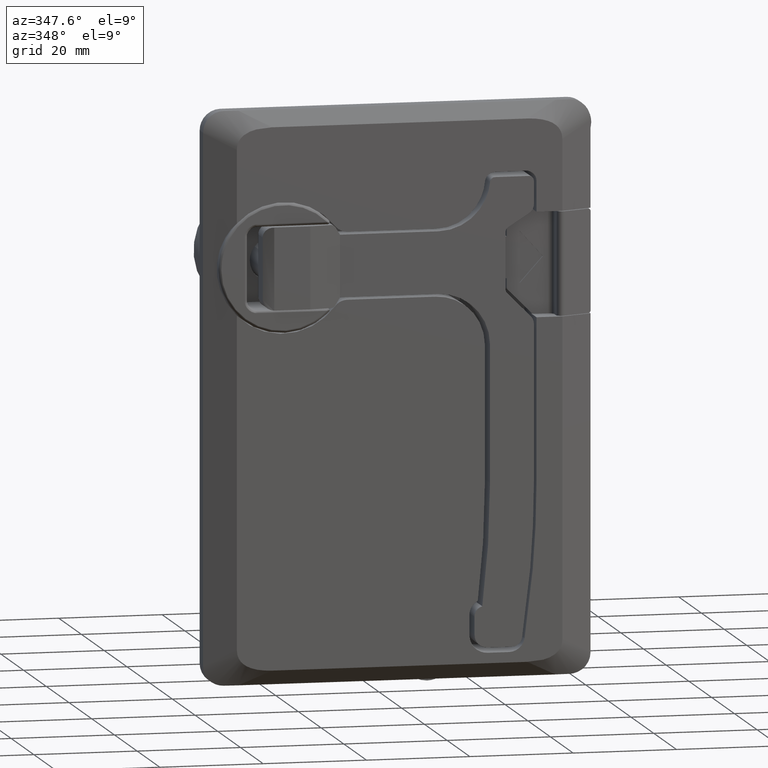
[diagram: clean part render]
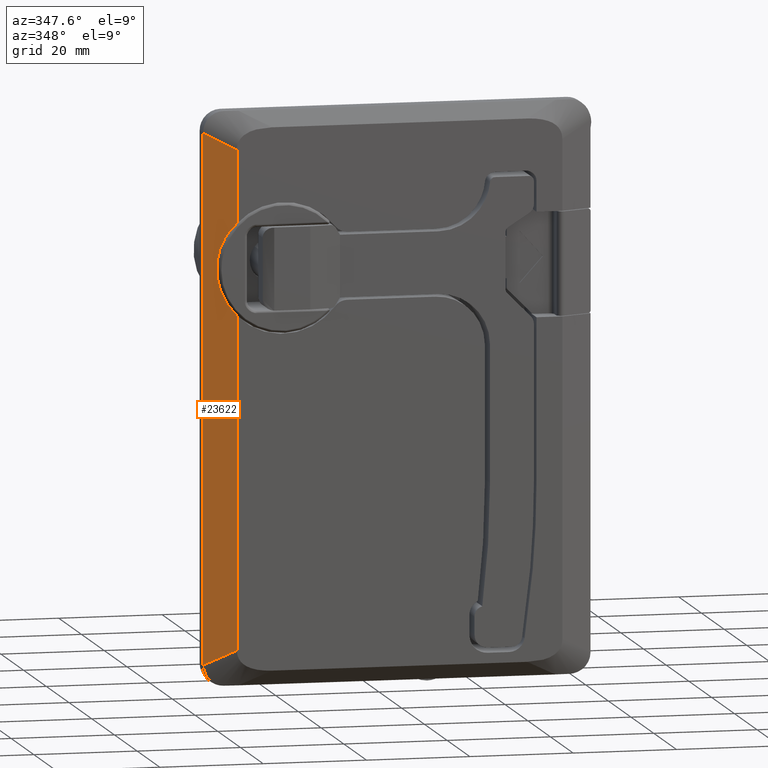
[diagram: same view with one face highlighted and labeled with its STEP entity id]
A machine part, auxiliary view. The second image highlights one B-rep face of the part: STEP entity #23622.
In plain terms, the highlighted face is a freeform B-spline surface patch.
Its self-contained STEP definition (entity closure, byte-faithful):
#20323=CARTESIAN_POINT('',(-9.000554312781020,-26.800000000000001,8.817562090782570));
#20324=VERTEX_POINT('',#20323);
#20341=CARTESIAN_POINT('',(-9.000554312781020,-26.800000000000001,-8.817562090151059));
#20342=VERTEX_POINT('',#20341);
#20343=CARTESIAN_POINT('',(-9.000554312781024,-26.800000000000072,-8.817562090151061));
#20344=CARTESIAN_POINT('',(-17.639048921657395,-23.200627246301586,3.157260E-010));
#20345=CARTESIAN_POINT('',(-9.000554312781048,-26.800000000000061,8.817562090782541));
#20353=(BOUNDED_CURVE()B_SPLINE_CURVE(2,(#20343,#20344,#20345),.UNSPECIFIED.,.F.,.U.)CURVE()GEOMETRIC_REPRESENTATION_ITEM()QUASI_UNIFORM_CURVE()RATIONAL_B_SPLINE_CURVE((1.0,0.714322831033173,1.0))REPRESENTATION_ITEM(''));
#20354=EDGE_CURVE('',#20342,#20324,#20353,.T.);
#23365=CARTESIAN_POINT('',(-9.000554312781162,-26.800000000000001,22.910781352598551));
#23366=VERTEX_POINT('',#23365);
#23441=CARTESIAN_POINT('',(-15.000554312781150,-24.300000000000001,25.910781352598448));
#23442=VERTEX_POINT('',#23441);
#23448=CARTESIAN_POINT('',(-9.000554312781162,-26.800000000000001,22.910781352598551));
#23449=CARTESIAN_POINT('',(-15.000554312781150,-24.300000000000001,25.910781352598448));
#23450=QUASI_UNIFORM_CURVE('',1,(#23448,#23449),.UNSPECIFIED.,.F.,.U.);
#23451=EDGE_CURVE('',#23366,#23442,#23450,.T.);
#23494=CARTESIAN_POINT('',(-9.000554312781162,-26.800000000000001,-72.910781352598804));
#23495=VERTEX_POINT('',#23494);
#23509=CARTESIAN_POINT('',(-15.000554312781150,-24.300000000000001,-75.910781352598789));
#23510=VERTEX_POINT('',#23509);
#23511=CARTESIAN_POINT('',(-15.000554312781150,-24.300000000000001,-75.910781352598789));
#23512=CARTESIAN_POINT('',(-9.000554312781162,-26.800000000000001,-72.910781352598804));
#23513=QUASI_UNIFORM_CURVE('',1,(#23511,#23512),.UNSPECIFIED.,.F.,.U.);
#23514=EDGE_CURVE('',#23510,#23495,#23513,.T.);
#23597=CARTESIAN_POINT('',(-8.700854380733908,-26.924874971686361,-80.996769168201411));
#23598=CARTESIAN_POINT('',(-15.300254459405011,-24.175124938906730,-80.996769168201411));
#23599=CARTESIAN_POINT('',(-8.700854380733908,-26.924874971686361,30.996770988912509));
#23600=CARTESIAN_POINT('',(-15.300254459405011,-24.175124938906730,30.996770988912509));
#23601=B_SPLINE_SURFACE_WITH_KNOTS('',1,1,((#23597,#23599),(#23598,#23600)),.UNSPECIFIED.,.F.,.F.,.U.,(2,2),(2,2),(0.0,7.149350085227028),(0.0,111.993540157113900),.UNSPECIFIED.);
#23602=CARTESIAN_POINT('',(-9.000554312781020,-26.800000000000001,-8.817562090151059));
#23603=CARTESIAN_POINT('',(-9.000554312781162,-26.800000000000001,-72.910781352598804));
#23604=QUASI_UNIFORM_CURVE('',1,(#23602,#23603),.UNSPECIFIED.,.F.,.U.);
#23605=EDGE_CURVE('',#20342,#23495,#23604,.T.);
#23606=ORIENTED_EDGE('',*,*,#23605,.F.);
#23607=ORIENTED_EDGE('',*,*,#20354,.T.);
#23608=CARTESIAN_POINT('',(-9.000554312781162,-26.800000000000001,22.910781352598551));
#23609=CARTESIAN_POINT('',(-9.000554312781020,-26.800000000000001,8.817562090782570));
#23610=QUASI_UNIFORM_CURVE('',1,(#23608,#23609),.UNSPECIFIED.,.F.,.U.);
#23611=EDGE_CURVE('',#23366,#20324,#23610,.T.);
#23612=ORIENTED_EDGE('',*,*,#23611,.F.);
#23613=ORIENTED_EDGE('',*,*,#23451,.T.);
#23614=CARTESIAN_POINT('',(-15.000554312781150,-24.300000000000001,25.910781352598448));
#23615=CARTESIAN_POINT('',(-15.000554312781150,-24.300000000000001,-75.910781352598789));
#23616=QUASI_UNIFORM_CURVE('',1,(#23614,#23615),.UNSPECIFIED.,.F.,.U.);
#23617=EDGE_CURVE('',#23442,#23510,#23616,.T.);
#23618=ORIENTED_EDGE('',*,*,#23617,.T.);
#23619=ORIENTED_EDGE('',*,*,#23514,.T.);
#23620=EDGE_LOOP('',(#23606,#23607,#23612,#23613,#23618,#23619));
#23621=FACE_OUTER_BOUND('',#23620,.T.);
#23622=ADVANCED_FACE('',(#23621),#23601,.F.);